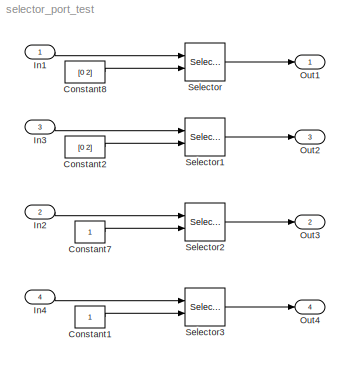
MODEL selector_port_test
KIND model
BLOCK [Constant] Constant1
  SID = 73
BLOCK [Constant] Constant2
  SID = 74
  Value = [0 2]
BLOCK [Constant] Constant7
  SID = 51
BLOCK [Constant] Constant8
  SID = 52
  Value = [0 2]
BLOCK [Inport] In1
  IconDisplay = Port number
  PortDimensions = 3
  SID = 1
BLOCK [Inport] In2
  IconDisplay = Port number
  Port = 2
  PortDimensions = 3
  SID = 12
BLOCK [Inport] In3
  IconDisplay = Port number
  Port = 3
  PortDimensions = 3
  SID = 71
BLOCK [Inport] In4
  IconDisplay = Port number
  Port = 4
  PortDimensions = 3
  SID = 72
BLOCK [Outport] Out1
  IconDisplay = Port number
  SID = 5
BLOCK [Outport] Out2
  IconDisplay = Port number
  Port = 3
  SID = 77
BLOCK [Outport] Out3
  IconDisplay = Port number
  Port = 2
  SID = 14
BLOCK [Outport] Out4
  IconDisplay = Port number
  Port = 4
  SID = 78
BLOCK [Selector] Selector
  IndexMode = Zero-based
  IndexOptions = Index vector (port)
  Indices = [1 0 0]
  InputPortWidth = 3
  OutputSizes = 1
  Ports = [2, 1]
  SID = 9
BLOCK [Selector] Selector1
  IndexMode = Zero-based
  IndexOptions = Index vector (port)
  Indices = [1 0 0]
  InputPortWidth = 3
  OutputSizes = 1
  Ports = [2, 1]
  SID = 75
BLOCK [Selector] Selector2
  IndexOptions = Index vector (port)
  Indices = 2
  InputPortWidth = 3
  OutputSizes = 1
  Ports = [2, 1]
  SID = 13
BLOCK [Selector] Selector3
  IndexMode = Zero-based
  IndexOptions = Index vector (port)
  Indices = 2
  InputPortWidth = 3
  OutputSizes = 2
  Ports = [2, 1]
  SID = 76
LINE Constant1:1 -> Selector3:2
LINE Constant2:1 -> Selector1:2
LINE Constant7:1 -> Selector2:2
LINE Constant8:1 -> Selector:2
LINE In1:1 -> Selector:1
LINE In2:1 -> Selector2:1
LINE In3:1 -> Selector1:1
LINE In4:1 -> Selector3:1
LINE Selector1:1 -> Out2:1
LINE Selector2:1 -> Out3:1
LINE Selector3:1 -> Out4:1
LINE Selector:1 -> Out1:1
